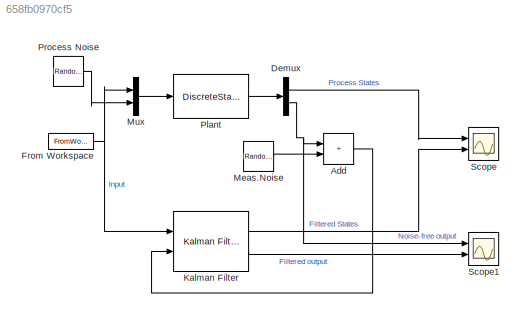
MODEL slx_658fb0970cf5
KIND model
CONFIG AbsTol = auto
CONFIG EnableMultiTasking = off
CONFIG FixedStep = auto
CONFIG MaxStep = auto
CONFIG MinStep = auto
CONFIG RelTol = 1e-3
CONFIG SampleTimeConstraint = Unconstrained
CONFIG Solver = VariableStepAuto
CONFIG SolverName = VariableStepAuto
CONFIG StartTime = 0.0
CONFIG StopTime = N-1
WORKSPACE source: MATLAB code (in-file)
WORKSPACE code: A = [1.2 -0.64 ; 0.5 0]; B = [1 0]';
WORKSPACE code: C = [1 0]; D = 0;
WORKSPACE nx = size(A,1)
WORKSPACE Plantdet = ss(A,B,C,D,1)
WORKSPACE Ts = 1
WORKSPACE N = 155
WORKSPACE ukvec = idinput(N,'prbs',[0 0.2],[-1 1])
WORKSPACE kvec = (0:N-1)'
WORKSPACE simin = [kvec ukvec(:)]
WORKSPACE code: Qtrue = 1; Rtrue = 1;
BLOCK [Sum] Add
  IconShape = rectangular
  Ports = [2, 1]
BLOCK [Demux] Demux
  Outputs = [2 1]
  Ports = [1, 2]
BLOCK [FromWorkspace] From Workspace
  Interpolate = off
  OutputAfterFinalValue = Holding final value
  SampleTime = Ts
  VariableName = simin
BLOCK [Reference] Kalman Filter  REF=ctrlSharedLib/Kalman Filter
  NameLocation = top
  Ports = [2, 2]
  SourceBlock = ctrlSharedLib/Kalman Filter
  SourceProductBaseCode = CT,ID
  SourceType = ctrlKalmanFilter
BLOCK [RandomNumber] Meas.Noise
  SampleTime = Ts
  Seed = 4781
  Variance = Rtrue
BLOCK [Mux] Mux
  DisplayOption = bar
  Inputs = 2
  Ports = [2, 1]
BLOCK [DiscreteStateSpace] Plant
  A = A
  B = [B ones(nx,1)]
  C = [eye(2) ; C]
  D = [zeros(2,2); D 0]
  SampleTime = Ts
BLOCK [RandomNumber] Process Noise
  SampleTime = Ts
  Seed = 21356
  Variance = Qtrue
BLOCK [Scope] Scope
  Floating = off
  NumInputPorts = 2
  Ports = [2]
  ScopeSpecificationString = Simulink.scopes.TimeScopeBlockCfg('CurrentConfiguration', extmgr.ConfigurationSet(extmgr.Configuration('Core','General UI',true),extmgr.Configuration('Core','Source UI',true),extmgr.Configuration('Sources','WiredSimulink',true),extmgr.Configuration('Visuals','Time Domain',true,'SerializedDisplays',{struct('MinYLimReal','-13.12297','MaxYLimReal','12.59441','YLabelReal','','MinYLimMag','0.00000','Ma...<+2061ch>
BLOCK [Scope] Scope1
  Floating = off
  NumInputPorts = 2
  Ports = [2]
  ScopeSpecificationString = Simulink.scopes.TimeScopeBlockCfg('CurrentConfiguration', extmgr.ConfigurationSet(extmgr.Configuration('Core','General UI',true),extmgr.Configuration('Core','Source UI',true),extmgr.Configuration('Sources','WiredSimulink',true,'DataLoggingVariableName','ScopeData1'),extmgr.Configuration('Visuals','Time Domain',true,'SerializedDisplays',{struct('MinYLimReal','-13.12297','MaxYLimReal','12.59441','YL...<+1551ch>
LINE Add:1 -> Kalman Filter:2
LINE Demux:1 -> Scope:1
NET Demux:2 -> Add:1, Scope1:1
NET From Workspace:1 -> Kalman Filter:1, Mux:1
LINE Kalman Filter:1 -> Scope:2
LINE Kalman Filter:2 -> Scope1:2
LINE Meas.Noise:1 -> Add:2
LINE Mux:1 -> Plant:1
LINE Plant:1 -> Demux:1
LINE Process Noise:1 -> Mux:2
note: NET lines group one-source signal fan-out (src -> all destinations, sorted); 1:1 wires keep LINE
